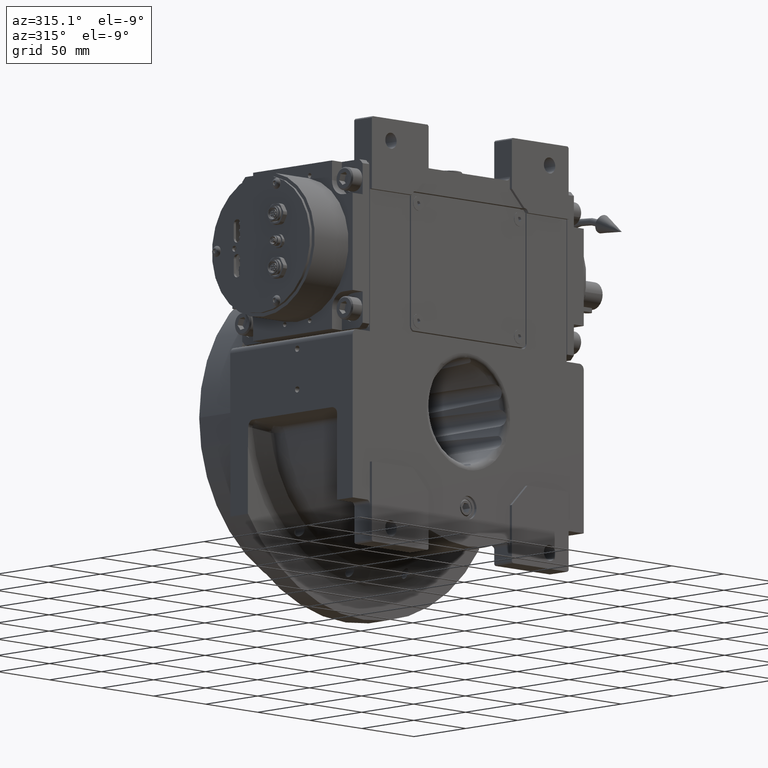
[diagram: clean part render]
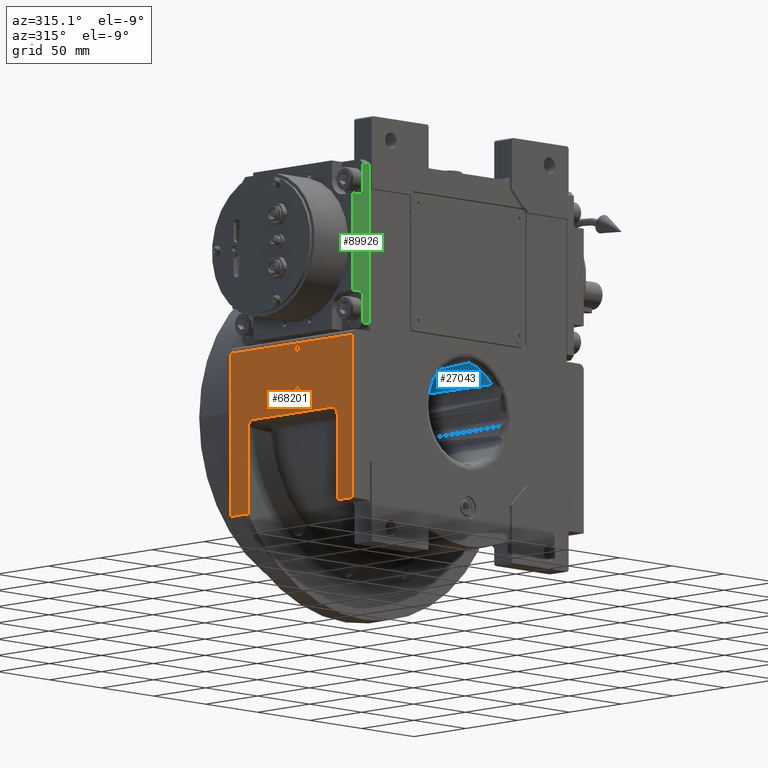
[diagram: same view with three faces highlighted in distinct colors, each labeled with its STEP entity id]
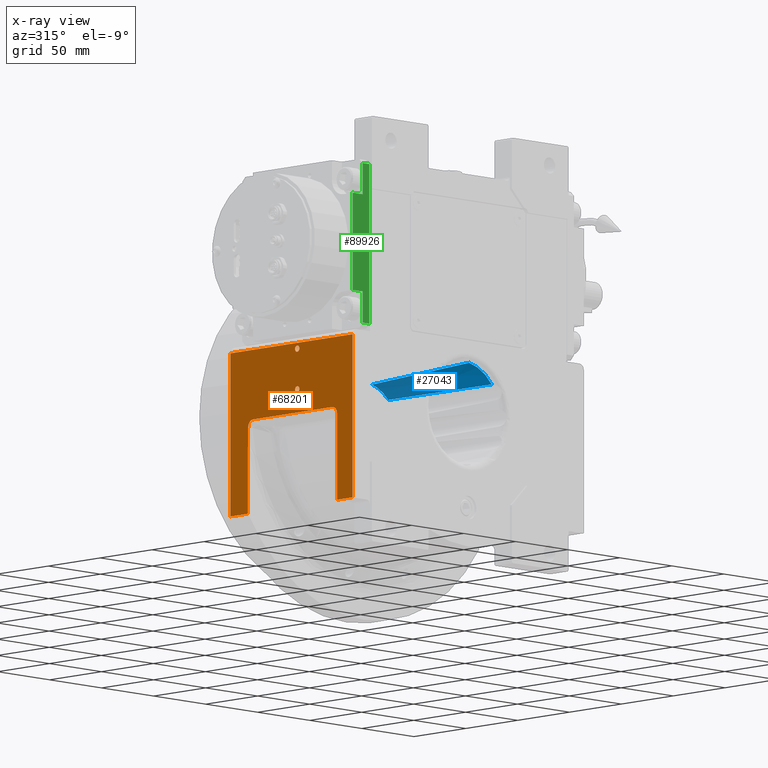
[diagram: x-ray of the same camera — body ghosted, the three highlighted faces saturated]
A machine part, auxiliary view with three faces highlighted in distinct colors.
The next image is the same camera in x-ray (body ghosted, the three faces saturated) — at least one of them is partly hidden behind the body in this view.
Their STEP definitions:

[orange] entity #68201 — the highlighted planar face has unit normal (-1, 0, 0).
#579 = LINE ( 'NONE', #94279, #13837 ) ;
#1533 = CARTESIAN_POINT ( 'NONE',  ( -110.9999999999999858, 47.49184152199143227, -23.26125549203704068 ) ) ;
#1794 =( BOUNDED_CURVE ( )  B_SPLINE_CURVE ( 3, ( #98461, #60829, #36641, #53115 ),
 .UNSPECIFIED., .F., .F. ) 
 B_SPLINE_CURVE_WITH_KNOTS ( ( 4, 4 ),
 ( 3.141592653590854045, 4.712388980385856740 ),
 .UNSPECIFIED. ) 
 CURVE ( )  GEOMETRIC_REPRESENTATION_ITEM ( )  RATIONAL_B_SPLINE_CURVE ( ( 1.000000000000000000, 0.8047378541243400685, 0.8047378541243400685, 1.000000000000000000 ) ) 
 REPRESENTATION_ITEM ( '' )  );
#1922 = EDGE_CURVE ( 'NONE', #71128, #11172, #1794, .T. ) ;
#1963 = LINE ( 'NONE', #18437, #12279 ) ;
#2055 = CARTESIAN_POINT ( 'NONE',  ( -111.0000000000000284, 47.38981798226070907, -17.67600262140464196 ) ) ;
#2257 = CARTESIAN_POINT ( 'NONE',  ( -111.0000000000000000, -33.50000000000000000, -7.000000000000000000 ) ) ;
#2578 = CARTESIAN_POINT ( 'NONE',  ( -110.9999998426041969, 47.24161804384319652, -11.75654023702319861 ) ) ;
#2926 = LINE ( 'NONE', #34296, #93612 ) ;
#3408 = ORIENTED_EDGE ( 'NONE', *, *, #40960, .T. ) ;
#4397 = CARTESIAN_POINT ( 'NONE',  ( -111.0000000000000000, -2.100000000000000089, 9.000000000000000000 ) ) ;
#5976 = CARTESIAN_POINT ( 'NONE',  ( -111.0000000000000000, 45.20819138357048672, -7.866231648914137509 ) ) ;
#6203 = EDGE_CURVE ( 'NONE', #84106, #11446, #71828, .T. ) ;
#6996 = CARTESIAN_POINT ( 'NONE',  ( -111.0000000000000284, 44.80537002266407853, -7.628406989121505610 ) ) ;
#7894 = LINE ( 'NONE', #80490, #32029 ) ;
#9353 = VECTOR ( 'NONE', #16023, 1000.000000000000000 ) ;
#9678 = FACE_BOUND ( 'NONE', #49708, .T. ) ;
#11172 = VERTEX_POINT ( 'NONE', #89399 ) ;
#11268 = ORIENTED_EDGE ( 'NONE', *, *, #22233, .F. ) ;
#11446 = VERTEX_POINT ( 'NONE', #47551 ) ;
#12279 = VECTOR ( 'NONE', #49866, 1000.000000000000000 ) ;
#13837 = VECTOR ( 'NONE', #78833, 1000.000000000000000 ) ;
#14203 = CARTESIAN_POINT ( 'NONE',  ( -111.0000000000000000, 47.50000000000000000, -71.43528539874399996 ) ) ;
#15243 = CARTESIAN_POINT ( 'NONE',  ( -111.0000000000000000, 44.38355727844160015, -7.415682013062533606 ) ) ;
#16023 = DIRECTION ( 'NONE',  ( 0.000000000000000000, -1.000000000000000000, 0.000000000000000000 ) ) ;
#16274 = VERTEX_POINT ( 'NONE', #4397 ) ;
#16336 = B_SPLINE_CURVE_WITH_KNOTS ( 'NONE', 3,
 ( #72077, #1533, #49425, #72589, #2055, #64344, #64872, #96271, #25715, #57147, #88566, #18014, #2578 ),
 .UNSPECIFIED., .F., .F.,
 ( 4, 1, 1, 2, 2, 1, 1, 1, 4 ),
 ( 0.000000000000000000, 0.4999999999999906741, 0.5624999999999891198, 0.5703124999999893419, 0.5781249999999896749, 0.5937499999999901190, 0.6249999999999905631, 0.7499999999999935607, 1.000000000000000000 ),
 .UNSPECIFIED. ) ;
#16798 = DIRECTION ( 'NONE',  ( 0.000000000000000000, 1.000000000000000000, 0.000000000000000000 ) ) ;
#17732 = LINE ( 'NONE', #40368, #32544 ) ;
#17917 = CARTESIAN_POINT ( 'NONE',  ( -111.0000000000000000, -53.50000000000000000, -71.43528539874399996 ) ) ;
#18014 = CARTESIAN_POINT ( 'NONE',  ( -111.0000000000000284, 47.26671036820440008, -12.69711666045169274 ) ) ;
#18022 = VERTEX_POINT ( 'NONE', #83561 ) ;
#18072 = CIRCLE ( 'NONE', #27894, 2.100000000000000089 ) ;
#18437 = CARTESIAN_POINT ( 'NONE',  ( -111.0000000000000000, 64.50000000000000000, -71.43528539874399996 ) ) ;
#18653 = DIRECTION ( 'NONE',  ( 0.000000000000000000, 1.000000000000000000, 0.000000000000000000 ) ) ;
#19084 = ORIENTED_EDGE ( 'NONE', *, *, #68962, .T. ) ;
#19744 = ORIENTED_EDGE ( 'NONE', *, *, #82980, .F. ) ;
#20669 = VERTEX_POINT ( 'NONE', #57895 ) ;
#20922 = CARTESIAN_POINT ( 'NONE',  ( -110.9999999999999858, 44.52823829090591090, -7.482778073993033630 ) ) ;
#22233 = EDGE_CURVE ( 'NONE', #62581, #99601, #41809, .T. ) ;
#22679 = DIRECTION ( 'NONE',  ( 0.000000000000000000, 1.000000000000000000, 0.000000000000000000 ) ) ;
#22720 = LINE ( 'NONE', #45397, #9353 ) ;
#22916 = CARTESIAN_POINT ( 'NONE',  ( -110.9999999999999574, 46.24926438878902246, -8.831662360591032268 ) ) ;
#23850 = VERTEX_POINT ( 'NONE', #88411 ) ;
#24197 = CARTESIAN_POINT ( 'NONE',  ( -111.0000000000000000, -3.552713678800499352E-15, 37.00000000000000000 ) ) ;
#25715 = CARTESIAN_POINT ( 'NONE',  ( -111.0000000000000000, 47.37801887890174868, -17.18315811918595060 ) ) ;
#27894 = AXIS2_PLACEMENT_3D ( 'NONE', #37556, #67468, #68474 ) ;
#28605 = VERTEX_POINT ( 'NONE', #99605 ) ;
#29247 = ORIENTED_EDGE ( 'NONE', *, *, #66476, .T. ) ;
#30548 = VECTOR ( 'NONE', #18653, 1000.000000000000000 ) ;
#31926 = CARTESIAN_POINT ( 'NONE',  ( -111.0000000000000000, 2.100000000000000089, 9.000000000000000000 ) ) ;
#32029 = VECTOR ( 'NONE', #79989, 1000.000000000000000 ) ;
#32544 = VECTOR ( 'NONE', #71794, 1000.000000000000000 ) ;
#32685 = ORIENTED_EDGE ( 'NONE', *, *, #72851, .F. ) ;
#32953 = EDGE_CURVE ( 'NONE', #36141, #16274, #79670, .T. ) ;
#34051 = EDGE_LOOP ( 'NONE', ( #52106, #100595 ) ) ;
#34296 = CARTESIAN_POINT ( 'NONE',  ( -111.0000000000000000, 47.50000000000000000, -71.43528539874399996 ) ) ;
#34580 = CARTESIAN_POINT ( 'NONE',  ( -111.0000000000000000, 47.50000000000000000, -71.43528539874399996 ) ) ;
#36141 = VERTEX_POINT ( 'NONE', #31926 ) ;
#36359 = AXIS2_PLACEMENT_3D ( 'NONE', #89638, #53000, #69448 ) ;
#36641 = CARTESIAN_POINT ( 'NONE',  ( -111.0000000000000284, -38.50000000000000000, -9.144127173638402439 ) ) ;
#37556 = CARTESIAN_POINT ( 'NONE',  ( -111.0000000000000000, -3.552713678800499352E-15, 9.000000000000000000 ) ) ;
#37797 = ORIENTED_EDGE ( 'NONE', *, *, #53550, .F. ) ;
#38642 = VERTEX_POINT ( 'NONE', #98132 ) ;
#38873 = AXIS2_PLACEMENT_3D ( 'NONE', #24197, #93221, #22679 ) ;
#40368 = CARTESIAN_POINT ( 'NONE',  ( -111.0000000000000000, -53.50000000000000000, -71.43528539874409944 ) ) ;
#40960 = EDGE_CURVE ( 'NONE', #62581, #83415, #2926, .T. ) ;
#41809 = LINE ( 'NONE', #34580, #30548 ) ;
#42534 = ORIENTED_EDGE ( 'NONE', *, *, #75279, .T. ) ;
#42703 = EDGE_CURVE ( 'NONE', #71128, #20669, #87354, .T. ) ;
#43263 = ORIENTED_EDGE ( 'NONE', *, *, #84242, .F. ) ;
#45397 = CARTESIAN_POINT ( 'NONE',  ( -111.0000000000000000, 64.50000000000000000, 41.00000000000000000 ) ) ;
#46673 = CARTESIAN_POINT ( 'NONE',  ( -111.0000000000000000, -33.50000000000000000, -7.000000000000000000 ) ) ;
#47551 = CARTESIAN_POINT ( 'NONE',  ( -111.0000000000000000, -2.100000000000000089, 37.00000000000000000 ) ) ;
#47906 = ORIENTED_EDGE ( 'NONE', *, *, #1922, .T. ) ;
#49425 = CARTESIAN_POINT ( 'NONE',  ( -110.9999999999999858, 47.45869610671962846, -20.70783326501533494 ) ) ;
#49708 = EDGE_LOOP ( 'NONE', ( #70232, #91003 ) ) ;
#49866 = DIRECTION ( 'NONE',  ( 0.000000000000000000, 0.000000000000000000, 1.000000000000000000 ) ) ;
#51831 = CARTESIAN_POINT ( 'NONE',  ( -110.9999998426041969, 47.24161804384319652, -11.75654023702319861 ) ) ;
#52106 = ORIENTED_EDGE ( 'NONE', *, *, #32953, .T. ) ;
#52334 = CARTESIAN_POINT ( 'NONE',  ( -110.9999999993382005, 42.40620941626179530, -7.000000000177450055 ) ) ;
#53000 = DIRECTION ( 'NONE',  ( 1.000000000000000000, 0.000000000000000000, 0.000000000000000000 ) ) ;
#53115 = CARTESIAN_POINT ( 'NONE',  ( -111.0000000000000000, -38.50000000000000000, -12.17638090205042189 ) ) ;
#53342 = CARTESIAN_POINT ( 'NONE',  ( -111.0000000000000142, 46.90681310458562336, -10.07660401504372771 ) ) ;
#53550 = EDGE_CURVE ( 'NONE', #99601, #23850, #1963, .T. ) ;
#54088 = B_SPLINE_CURVE_WITH_KNOTS ( 'NONE', 3,
 ( #51831, #61058, #61572, #92972, #85262, #53342, #54341, #85774, #22916, #77524, #5976, #6996, #20922, #15243, #62064, #84264, #52334 ),
 .UNSPECIFIED., .F., .F.,
 ( 4, 1, 1, 2, 2, 2, 1, 2, 2, 4 ),
 ( 0.000000000000000000, 0.1249999999999996114, 0.1874999999999987788, 0.2187499999999980571, 0.2499999999999973077, 0.4999999999999975575, 0.6249999999999972244, 0.6874999999999972244, 0.7499999999999972244, 1.000000000000000000 ),
 .UNSPECIFIED. ) ;
#54341 = CARTESIAN_POINT ( 'NONE',  ( -111.0000000000000142, 46.87834784565706059, -10.00509416193215095 ) ) ;
#57147 = CARTESIAN_POINT ( 'NONE',  ( -110.9999999999999716, 47.35640947859300098, -16.28572579493090444 ) ) ;
#57895 = CARTESIAN_POINT ( 'NONE',  ( -110.9999999993382005, 42.40620941626179530, -7.000000000177450055 ) ) ;
#59573 = DIRECTION ( 'NONE',  ( -1.000000000000000000, 0.000000000000000000, 0.000000000000000000 ) ) ;
#60829 = CARTESIAN_POINT ( 'NONE',  ( -111.0000000000000142, -36.42893218813447476, -6.999999999999989342 ) ) ;
#61058 = CARTESIAN_POINT ( 'NONE',  ( -111.0000000000000142, 47.23304483909880958, -11.43688986518032635 ) ) ;
#61572 = CARTESIAN_POINT ( 'NONE',  ( -111.0000000000000142, 47.17730589702550503, -10.96906219321990150 ) ) ;
#62064 = CARTESIAN_POINT ( 'NONE',  ( -111.0000000000000284, 43.65692249831813143, -7.119924177572298341 ) ) ;
#62581 = VERTEX_POINT ( 'NONE', #14203 ) ;
#64344 = CARTESIAN_POINT ( 'NONE',  ( -111.0000000000000142, 47.38804427955523835, -17.60168279826294579 ) ) ;
#64872 = CARTESIAN_POINT ( 'NONE',  ( -111.0000000000000142, 47.38697793714037942, -17.55712914402924696 ) ) ;
#66002 = CIRCLE ( 'NONE', #36359, 2.100000000000000089 ) ;
#66476 = EDGE_CURVE ( 'NONE', #83415, #38642, #16336, .T. ) ;
#66793 = DIRECTION ( 'NONE',  ( 0.000000000000000000, 0.000000000000000000, 1.000000000000000000 ) ) ;
#67468 = DIRECTION ( 'NONE',  ( 1.000000000000000000, 0.000000000000000000, 0.000000000000000000 ) ) ;
#68201 = ADVANCED_FACE ( 'NONE', ( #87969, #9678, #96168 ), #88470, .T. ) ;
#68474 = DIRECTION ( 'NONE',  ( 0.000000000000000000, -1.000000000000000000, -1.652117596168387559E-15 ) ) ;
#68962 = EDGE_CURVE ( 'NONE', #11172, #28605, #7894, .T. ) ;
#69448 = DIRECTION ( 'NONE',  ( 0.000000000000000000, -1.000000000000000000, 0.000000000000000000 ) ) ;
#70232 = ORIENTED_EDGE ( 'NONE', *, *, #6203, .T. ) ;
#71128 = VERTEX_POINT ( 'NONE', #2257 ) ;
#71794 = DIRECTION ( 'NONE',  ( 0.000000000000000000, 1.000000000000000000, 0.000000000000000000 ) ) ;
#71828 = CIRCLE ( 'NONE', #38873, 2.100000000000000089 ) ;
#72077 = CARTESIAN_POINT ( 'NONE',  ( -111.0000000000000000, 47.50000000000000000, -25.44626115736729588 ) ) ;
#72589 = CARTESIAN_POINT ( 'NONE',  ( -111.0000000000000142, 47.39775283363938030, -18.01025571059393826 ) ) ;
#72851 = EDGE_CURVE ( 'NONE', #99222, #28605, #17732, .T. ) ;
#72861 = EDGE_LOOP ( 'NONE', ( #37797, #11268, #3408, #29247, #42534, #87366, #47906, #19084, #32685, #19744, #43263 ) ) ;
#72899 = CARTESIAN_POINT ( 'NONE',  ( -111.0000000000000000, 47.50000000000000000, -25.44626115736729588 ) ) ;
#75279 = EDGE_CURVE ( 'NONE', #38642, #20669, #54088, .T. ) ;
#75617 = VECTOR ( 'NONE', #16798, 1000.000000000000000 ) ;
#77524 = CARTESIAN_POINT ( 'NONE',  ( -111.0000000000000142, 45.57238403428445395, -8.162200170006535416 ) ) ;
#78833 = DIRECTION ( 'NONE',  ( 0.000000000000000000, 0.000000000000000000, -1.000000000000000000 ) ) ;
#79670 = CIRCLE ( 'NONE', #81371, 2.100000000000000089 ) ;
#79739 = EDGE_CURVE ( 'NONE', #11446, #84106, #66002, .T. ) ;
#79989 = DIRECTION ( 'NONE',  ( 0.000000000000000000, 0.000000000000000000, -1.000000000000000000 ) ) ;
#80490 = CARTESIAN_POINT ( 'NONE',  ( -111.0000000000000000, -38.50000000000000000, -12.17638090205040058 ) ) ;
#81371 = AXIS2_PLACEMENT_3D ( 'NONE', #98675, #91448, #99666 ) ;
#82980 = EDGE_CURVE ( 'NONE', #18022, #99222, #579, .T. ) ;
#83415 = VERTEX_POINT ( 'NONE', #72899 ) ;
#83561 = CARTESIAN_POINT ( 'NONE',  ( -111.0000000000000000, -53.50000000000000000, 41.00000000000000000 ) ) ;
#84106 = VERTEX_POINT ( 'NONE', #91757 ) ;
#84242 = EDGE_CURVE ( 'NONE', #23850, #18022, #22720, .T. ) ;
#84264 = CARTESIAN_POINT ( 'NONE',  ( -111.0000000000000142, 43.04624886168785025, -7.001080695584134261 ) ) ;
#85262 = CARTESIAN_POINT ( 'NONE',  ( -111.0000000000000142, 46.96112643920030649, -10.22283934410663697 ) ) ;
#85774 = CARTESIAN_POINT ( 'NONE',  ( -110.9999999999999574, 46.59747468668511772, -9.345669636517394352 ) ) ;
#86239 = AXIS2_PLACEMENT_3D ( 'NONE', #17917, #59573, #66793 ) ;
#86504 = CARTESIAN_POINT ( 'NONE',  ( -111.0000000000000000, -53.50000000000000000, -71.43528539874409944 ) ) ;
#87354 = LINE ( 'NONE', #46673, #75617 ) ;
#87366 = ORIENTED_EDGE ( 'NONE', *, *, #42703, .F. ) ;
#87969 = FACE_BOUND ( 'NONE', #34051, .T. ) ;
#88411 = CARTESIAN_POINT ( 'NONE',  ( -111.0000000000000000, 64.50000000000000000, 41.00000000000000000 ) ) ;
#88470 = PLANE ( 'NONE',  #86239 ) ;
#88566 = CARTESIAN_POINT ( 'NONE',  ( -111.0000000000000284, 47.30739276393136095, -14.28307552350015541 ) ) ;
#88940 = CARTESIAN_POINT ( 'NONE',  ( -111.0000000000000000, 64.50000000000000000, -71.43528539874399996 ) ) ;
#89399 = CARTESIAN_POINT ( 'NONE',  ( -111.0000000000000000, -38.50000000000000000, -12.17638090205042189 ) ) ;
#89638 = CARTESIAN_POINT ( 'NONE',  ( -111.0000000000000000, -3.552713678800499352E-15, 37.00000000000000000 ) ) ;
#90849 = EDGE_CURVE ( 'NONE', #16274, #36141, #18072, .T. ) ;
#91003 = ORIENTED_EDGE ( 'NONE', *, *, #79739, .T. ) ;
#91448 = DIRECTION ( 'NONE',  ( 1.000000000000000000, 0.000000000000000000, 0.000000000000000000 ) ) ;
#91757 = CARTESIAN_POINT ( 'NONE',  ( -111.0000000000000000, 2.100000000000000089, 37.00000000000000000 ) ) ;
#92972 = CARTESIAN_POINT ( 'NONE',  ( -111.0000000000000000, 47.03723638803381846, -10.44364842193959575 ) ) ;
#93221 = DIRECTION ( 'NONE',  ( 1.000000000000000000, 0.000000000000000000, 0.000000000000000000 ) ) ;
#93612 = VECTOR ( 'NONE', #95087, 1000.000000000000000 ) ;
#94279 = CARTESIAN_POINT ( 'NONE',  ( -111.0000000000000000, -53.50000000000000000, 41.00000000000000000 ) ) ;
#95087 = DIRECTION ( 'NONE',  ( 0.000000000000000000, 0.000000000000000000, 1.000000000000000000 ) ) ;
#96168 = FACE_OUTER_BOUND ( 'NONE', #72861, .T. ) ;
#96271 = CARTESIAN_POINT ( 'NONE',  ( -111.0000000000000568, 47.38398366112607363, -17.43201616111707608 ) ) ;
#98132 = CARTESIAN_POINT ( 'NONE',  ( -110.9999998426041969, 47.24161804384319652, -11.75654023702319861 ) ) ;
#98461 = CARTESIAN_POINT ( 'NONE',  ( -111.0000000000000000, -33.50000000000000000, -7.000000000000000000 ) ) ;
#98675 = CARTESIAN_POINT ( 'NONE',  ( -111.0000000000000000, -3.552713678800499352E-15, 9.000000000000000000 ) ) ;
#99222 = VERTEX_POINT ( 'NONE', #86504 ) ;
#99601 = VERTEX_POINT ( 'NONE', #88940 ) ;
#99605 = CARTESIAN_POINT ( 'NONE',  ( -111.0000000000000000, -38.50000000000000000, -71.43528539874409944 ) ) ;
#99666 = DIRECTION ( 'NONE',  ( 0.000000000000000000, 1.000000000000000000, 1.652117596168387559E-15 ) ) ;
#100595 = ORIENTED_EDGE ( 'NONE', *, *, #90849, .T. ) ;

[blue] entity #27043 — the highlighted conical surface has half-angle 2.224 deg.
#894 = B_SPLINE_CURVE_WITH_KNOTS ( 'NONE', 3,
 ( #37536, #21113, #52513, #84945, #92654, #100368, #51524, #29303, #60736, #92140, #44259, #14407, #20116, #68945, #13918, #75694, #45286, #21606, #76707, #6162, #45777, #35529, #90652, #93657 ),
 .UNSPECIFIED., .F., .F.,
 ( 4, 2, 1, 2, 2, 1, 1, 1, 1, 1, 1, 1, 1, 1, 2, 2, 4 ),
 ( 0.000000000000000000, 0.2500000000000006661, 0.2812500000000006661, 0.2851562500000007216, 0.2890625000000007216, 0.2968750000000006661, 0.3125000000000006661, 0.3750000000000002776, 0.4374999999999998890, 0.4687499999999996669, 0.4843749999999996114, 0.4921874999999996114, 0.4960937499999995559, 0.4980468749999995559, 0.4990234374999995559, 0.4999999999999995559, 1.000000000000000000 ),
 .UNSPECIFIED. ) ;
#969 = CARTESIAN_POINT ( 'NONE',  ( 25.51128383037758596, -15.03979166437263437, 22.48583985264815510 ) ) ;
#1988 = CARTESIAN_POINT ( 'NONE',  ( 24.40343721540970634, 8.805876929435504152, 22.33347346601004091 ) ) ;
#2843 = DIRECTION ( 'NONE',  ( 0.000000000000000000, -1.000000000000000000, 1.836909530733564901E-16 ) ) ;
#4541 = CARTESIAN_POINT ( 'NONE',  ( 25.88057552598849398, -22.43255883661134575, 22.49981477759153847 ) ) ;
#6162 = CARTESIAN_POINT ( 'NONE',  ( 6.986198756228622742, -1.112472536497335796, 32.72819764094732875 ) ) ;
#6524 = EDGE_LOOP ( 'NONE', ( #100648, #101128, #55670, #33814 ) ) ;
#7436 = CARTESIAN_POINT ( 'NONE',  ( 7.465572626883210106, 46.61641710001750027, 30.71779199823640027 ) ) ;
#9709 = CARTESIAN_POINT ( 'NONE',  ( 24.76852740289404409, 0.6730493426671201318, 22.40147263997725702 ) ) ;
#10820 = DIRECTION ( 'NONE',  ( 0.000000000000000000, 1.000000000000000000, 0.000000000000000000 ) ) ;
#11243 = CARTESIAN_POINT ( 'NONE',  ( 25.95781279302216404, -23.94214981186699376, 22.50025392733025953 ) ) ;
#13468 = CONICAL_SURFACE ( 'NONE', #70993, 1.000000000000000000, 0.03881544608146950126 ) ;
#13918 = CARTESIAN_POINT ( 'NONE',  ( 6.956713694823005056, -2.830628598857671818, 32.80269391452520722 ) ) ;
#14407 = CARTESIAN_POINT ( 'NONE',  ( 6.760513059066273200, -13.11549990474103389, 33.25152393777735682 ) ) ;
#16415 = CARTESIAN_POINT ( 'NONE',  ( 25.03417263803944337, -5.111746378134564672, 22.44241922420927082 ) ) ;
#16935 = CARTESIAN_POINT ( 'NONE',  ( 25.76586295523984305, -20.15906628333558359, 22.49703246913785648 ) ) ;
#19981 = CARTESIAN_POINT ( 'NONE',  ( 26.42420339741958557, -32.98277521134984624, 22.49775664276875276 ) ) ;
#20116 = CARTESIAN_POINT ( 'NONE',  ( 6.860290443138764793, -8.134360098611463030, 33.03346330531967112 ) ) ;
#20865 = CARTESIAN_POINT ( 'NONE',  ( 4.973799150320699408E-14, 46.61641710001710237, 8.881784197001248537E-14 ) ) ;
#21113 = CARTESIAN_POINT ( 'NONE',  ( 6.022077876776402050, -40.84851847077006681, 34.48864115374617967 ) ) ;
#21606 = CARTESIAN_POINT ( 'NONE',  ( 6.983499318605022488, -1.271834120789557598, 32.73510189988977004 ) ) ;
#25174 = AXIS2_PLACEMENT_3D ( 'NONE', #64881, #10820, #80852 ) ;
#25654 = CARTESIAN_POINT ( 'NONE',  ( 24.83612322846023091, -0.8028076794671242800, 22.41214229728206675 ) ) ;
#26155 = CARTESIAN_POINT ( 'NONE',  ( 24.84177032211308145, -0.9257628676239468835, 22.41301157074224193 ) ) ;
#26762 = CARTESIAN_POINT ( 'NONE',  ( 27.31593238095755183, -48.69402850002909844, 22.38019785351220392 ) ) ;
#27043 = ADVANCED_FACE ( 'NONE', ( #97586 ), #13468, .F. ) ;
#28473 = CIRCLE ( 'NONE', #25174, 35.31336033009879571 ) ;
#29070 = DIRECTION ( 'NONE',  ( 0.2361627373232034199, 1.185310840213651156E-14, 0.9717135182243846758 ) ) ;
#29303 = CARTESIAN_POINT ( 'NONE',  ( 6.573042581034295395, -21.28232574482870021, 33.61216087136617858 ) ) ;
#29571 = DIRECTION ( 'NONE',  ( -6.238952002062300699E-15, 1.000000000000000000, -1.074329498307580039E-14 ) ) ;
#30003 = VERTEX_POINT ( 'NONE', #7436 ) ;
#32345 = CARTESIAN_POINT ( 'NONE',  ( 25.61991781937399892, -17.24455033886479072, 22.49199927328526627 ) ) ;
#33814 = ORIENTED_EDGE ( 'NONE', *, *, #49139, .T. ) ;
#35529 = CARTESIAN_POINT ( 'NONE',  ( 7.253242697210138701, 14.69085711055933174, 32.04362592338982552 ) ) ;
#37536 = CARTESIAN_POINT ( 'NONE',  ( 5.723853692384750502, -48.69402850002909844, 34.84639029672330679 ) ) ;
#38238 = AXIS2_PLACEMENT_3D ( 'NONE', #20865, #29571, #29070 ) ;
#38716 = EDGE_CURVE ( 'NONE', #30003, #84173, #71129, .T. ) ;
#40079 = CARTESIAN_POINT ( 'NONE',  ( 23.97559824061679734, 18.69828848316890557, 22.23098874935703506 ) ) ;
#40567 = CARTESIAN_POINT ( 'NONE',  ( 24.14431659784692741, 14.73565033754468701, 22.27525475562021384 ) ) ;
#41083 = CARTESIAN_POINT ( 'NONE',  ( 24.80791845434982790, -0.1879601732337389530, 22.40775267802282755 ) ) ;
#42735 = VERTEX_POINT ( 'NONE', #70345 ) ;
#44259 = CARTESIAN_POINT ( 'NONE',  ( 6.662437458124577105, -17.52649173517004755, 33.44591884574079188 ) ) ;
#45286 = CARTESIAN_POINT ( 'NONE',  ( 6.979709668964797054, -1.494847326153466271, 32.74476566856040449 ) ) ;
#45777 = CARTESIAN_POINT ( 'NONE',  ( 6.986757225006181571, -1.079452833704635184, 32.72676720994711985 ) ) ;
#47815 = CARTESIAN_POINT ( 'NONE',  ( 25.22349478906490816, -9.117395917710094722, 22.46406618705172775 ) ) ;
#48333 = CARTESIAN_POINT ( 'NONE',  ( 25.77231298795854642, -20.28739144586872101, 22.49722197610245900 ) ) ;
#48832 = CARTESIAN_POINT ( 'NONE',  ( 24.53450783075404118, 5.844536177962814882, 22.36053744872413773 ) ) ;
#49139 = EDGE_CURVE ( 'NONE', #42735, #30003, #894, .T. ) ;
#49891 = CARTESIAN_POINT ( 'NONE',  ( 24.69007782288652209, 2.395844051595635626, 22.38844597938574310 ) ) ;
#51397 = CARTESIAN_POINT ( 'NONE',  ( 27.31593238095755183, -48.69402850002909844, 22.38019785351220392 ) ) ;
#51524 = CARTESIAN_POINT ( 'NONE',  ( 6.570175816266306867, -21.40025213418825345, 33.61738769822922279 ) ) ;
#52513 = CARTESIAN_POINT ( 'NONE',  ( 6.273740630820433317, -32.92053606919856890, 34.13003539115194940 ) ) ;
#53635 = CARTESIAN_POINT ( 'NONE',  ( 22.86960190519749858, 46.61641710001750027, 21.82427154779680123 ) ) ;
#53765 = CARTESIAN_POINT ( 'NONE',  ( 26.85994327169417417, -40.89856346297862899, 22.45906777033901847 ) ) ;
#53990 = B_SPLINE_CURVE_WITH_KNOTS ( 'NONE', 3,
 ( #56581, #56056, #71504, #40079, #40567, #1988, #48832, #49891, #9709, #41083, #64794, #25654, #26155, #55537, #16415, #47815, #969, #32345, #63752, #95160, #16935, #48333, #79767, #4541, #11243, #19981, #53765, #51397 ),
 .UNSPECIFIED., .F., .F.,
 ( 4, 2, 2, 1, 1, 1, 1, 1, 2, 2, 2, 1, 1, 2, 2, 1, 2, 4 ),
 ( 0.000000000000000000, 0.2499999999999996669, 0.3749999999999995004, 0.4374999999999994449, 0.4687499999999993894, 0.4843749999999993339, 0.4921874999999993339, 0.4960937499999993339, 0.4980468749999993339, 0.4999999999999993339, 0.6249999999999992228, 0.6874999999999992228, 0.6953124999999992228, 0.6992187499999992228, 0.7031249999999992228, 0.7187499999999991118, 0.7499999999999992228, 1.000000000000000000 ),
 .UNSPECIFIED. ) ;
#54944 = EDGE_CURVE ( 'NONE', #84173, #64993, #53990, .T. ) ;
#55537 = CARTESIAN_POINT ( 'NONE',  ( 24.84450238245271336, -0.9852262043414158343, 22.41343067772652731 ) ) ;
#55670 = ORIENTED_EDGE ( 'NONE', *, *, #96070, .F. ) ;
#56056 = CARTESIAN_POINT ( 'NONE',  ( 23.16783615626534854, 38.59658207325363577, 21.96288101825722805 ) ) ;
#56581 = CARTESIAN_POINT ( 'NONE',  ( 22.86960190519749858, 46.61641710001750027, 21.82427154779680123 ) ) ;
#60736 = CARTESIAN_POINT ( 'NONE',  ( 6.581826262667238581, -20.91999557110133878, 33.59610421277873371 ) ) ;
#63752 = CARTESIAN_POINT ( 'NONE',  ( 25.73542481576599528, -19.55262967640779692, 22.49607938581957356 ) ) ;
#64794 = CARTESIAN_POINT ( 'NONE',  ( 24.82765555852873263, -0.6183679715431901203, 22.41083419929787723 ) ) ;
#64881 = CARTESIAN_POINT ( 'NONE',  ( 3.552713678800499352E-15, -48.69402850002909844, 3.197442310920450205E-14 ) ) ;
#64993 = VERTEX_POINT ( 'NONE', #26762 ) ;
#66674 = DIRECTION ( 'NONE',  ( 0.000000000000000000, 0.000000000000000000, 1.000000000000000000 ) ) ;
#68945 = CARTESIAN_POINT ( 'NONE',  ( 6.925363045054214517, -4.605542403853359446, 32.87978573458230613 ) ) ;
#70345 = CARTESIAN_POINT ( 'NONE',  ( 5.723853692384750502, -48.69402850002909844, 34.84639029672330679 ) ) ;
#70993 = AXIS2_PLACEMENT_3D ( 'NONE', #88851, #2843, #66674 ) ;
#71129 = CIRCLE ( 'NONE', #38238, 31.61198380194101176 ) ;
#71504 = CARTESIAN_POINT ( 'NONE',  ( 23.48138045982657118, 30.61457054069616390, 22.08259406658937252 ) ) ;
#75694 = CARTESIAN_POINT ( 'NONE',  ( 6.972093518077168817, -1.940545456955806936, 32.76408545159119257 ) ) ;
#76707 = CARTESIAN_POINT ( 'NONE',  ( 6.985119507321916110, -1.176221859927524704, 32.73095945507134985 ) ) ;
#79767 = CARTESIAN_POINT ( 'NONE',  ( 25.80408192880812024, -20.91873774834324706, 22.49810808265511852 ) ) ;
#80852 = DIRECTION ( 'NONE',  ( 0.1620874830058615379, 0.000000000000000000, 0.9867763920224401630 ) ) ;
#84173 = VERTEX_POINT ( 'NONE', #53635 ) ;
#84945 = CARTESIAN_POINT ( 'NONE',  ( 6.507895992867988255, -23.90877444857894574, 33.72873704697388320 ) ) ;
#88851 = CARTESIAN_POINT ( 'NONE',  ( 0.000000000000000000, 834.8749999998768772, -1.415119829553997709E-13 ) ) ;
#90652 = CARTESIAN_POINT ( 'NONE',  ( 7.407450296558792502, 30.57923330682627139, 31.37285089244275227 ) ) ;
#92140 = CARTESIAN_POINT ( 'NONE',  ( 6.599306107180371583, -20.19458486953130105, 33.56397017648107095 ) ) ;
#92654 = CARTESIAN_POINT ( 'NONE',  ( 6.536400482018568603, -22.78085453633198298, 33.67860664871169263 ) ) ;
#93657 = CARTESIAN_POINT ( 'NONE',  ( 7.465572626883210106, 46.61641710001750027, 30.71779199823640027 ) ) ;
#95160 = CARTESIAN_POINT ( 'NONE',  ( 25.75368476741833490, -19.91655888944159969, 22.49665975858848199 ) ) ;
#96070 = EDGE_CURVE ( 'NONE', #42735, #64993, #28473, .T. ) ;
#97586 = FACE_OUTER_BOUND ( 'NONE', #6524, .T. ) ;
#100368 = CARTESIAN_POINT ( 'NONE',  ( 6.564052057615202607, -21.65130370070690446, 33.62851756937610048 ) ) ;
#100648 = ORIENTED_EDGE ( 'NONE', *, *, #38716, .T. ) ;
#101128 = ORIENTED_EDGE ( 'NONE', *, *, #54944, .T. ) ;

[green] entity #89926 — the highlighted planar face has unit normal (0, -1, -0).
#1020 = LINE ( 'NONE', #69515, #48117 ) ;
#3052 = VECTOR ( 'NONE', #42559, 1000.000000000000000 ) ;
#4434 = VERTEX_POINT ( 'NONE', #53632 ) ;
#4476 = ORIENTED_EDGE ( 'NONE', *, *, #99200, .T. ) ;
#4567 = VECTOR ( 'NONE', #34534, 1000.000000000000000 ) ;
#6493 = ORIENTED_EDGE ( 'NONE', *, *, #11374, .T. ) ;
#7917 = DIRECTION ( 'NONE',  ( 2.831068712794147285E-14, 3.774758283725539337E-15, 1.000000000000000000 ) ) ;
#8955 = CARTESIAN_POINT ( 'NONE',  ( -53.49999999999905498, -6.499999999999992006, 33.49999999999858602 ) ) ;
#10096 = EDGE_CURVE ( 'NONE', #71068, #4434, #63988, .T. ) ;
#10229 = VECTOR ( 'NONE', #10352, 1000.000000000000000 ) ;
#10352 = DIRECTION ( 'NONE',  ( 3.861222998158627866E-29, 1.000000000000000000, 3.774758283725536182E-15 ) ) ;
#11374 = EDGE_CURVE ( 'NONE', #89276, #4434, #72261, .T. ) ;
#15649 = CARTESIAN_POINT ( 'NONE',  ( -53.49999999999858602, 4.579669976578770729E-13, 54.99999999999835154 ) ) ;
#16639 = DIRECTION ( 'NONE',  ( -3.861222998158627866E-29, -1.000000000000000000, -3.774758283725536182E-15 ) ) ;
#18919 = LINE ( 'NONE', #65740, #3052 ) ;
#21160 = AXIS2_PLACEMENT_3D ( 'NONE', #54284, #91528, #83324 ) ;
#25828 = CARTESIAN_POINT ( 'NONE',  ( -53.50000000000094502, -16.00000000000000000, -33.50000000000186162 ) ) ;
#29694 = CARTESIAN_POINT ( 'NONE',  ( -53.49999999999858602, 4.718447854656915297E-13, 54.99999999999835154 ) ) ;
#30401 = ORIENTED_EDGE ( 'NONE', *, *, #71655, .T. ) ;
#32429 = VECTOR ( 'NONE', #16639, 1000.000000000000000 ) ;
#33468 = ORIENTED_EDGE ( 'NONE', *, *, #94267, .T. ) ;
#34534 = DIRECTION ( 'NONE',  ( 2.831068712794147285E-14, 3.774758283725539337E-15, 1.000000000000000000 ) ) ;
#35741 = ORIENTED_EDGE ( 'NONE', *, *, #75160, .T. ) ;
#37884 = VECTOR ( 'NONE', #57206, 1000.000000000000000 ) ;
#42350 = CARTESIAN_POINT ( 'NONE',  ( -53.49999999999905498, -16.00000000000000000, 33.49999999999858602 ) ) ;
#42559 = DIRECTION ( 'NONE',  ( 3.861222998158627866E-29, 1.000000000000000000, 3.774758283725536182E-15 ) ) ;
#44159 = PLANE ( 'NONE',  #21160 ) ;
#44228 = VERTEX_POINT ( 'NONE', #55311 ) ;
#46310 = VERTEX_POINT ( 'NONE', #98713 ) ;
#46329 = DIRECTION ( 'NONE',  ( -3.861222998158627866E-29, -1.000000000000000000, -3.774758283725536182E-15 ) ) ;
#46493 = VECTOR ( 'NONE', #49541, 1000.000000000000000 ) ;
#47119 = VERTEX_POINT ( 'NONE', #42350 ) ;
#48117 = VECTOR ( 'NONE', #46329, 1000.000000000000000 ) ;
#48888 = EDGE_CURVE ( 'NONE', #70848, #71068, #54650, .T. ) ;
#48952 = ORIENTED_EDGE ( 'NONE', *, *, #48888, .F. ) ;
#49478 = CARTESIAN_POINT ( 'NONE',  ( -53.50000000000094502, -16.00000000000000000, -33.50000000000186162 ) ) ;
#49541 = DIRECTION ( 'NONE',  ( 2.831068712794147285E-14, 3.774758283725539337E-15, 1.000000000000000000 ) ) ;
#53632 = CARTESIAN_POINT ( 'NONE',  ( -53.49999999999858602, -6.499999999999977796, 54.99999999999858602 ) ) ;
#54284 = CARTESIAN_POINT ( 'NONE',  ( -53.50000000000164846, 0.000000000000000000, -58.00000000000188294 ) ) ;
#54650 = LINE ( 'NONE', #65933, #37884 ) ;
#55311 = CARTESIAN_POINT ( 'NONE',  ( -53.50000000000094502, -16.00000000000000000, -33.50000000000186162 ) ) ;
#57206 = DIRECTION ( 'NONE',  ( 2.831068712794147285E-14, 3.774758283725539337E-15, 1.000000000000000000 ) ) ;
#59124 = FACE_OUTER_BOUND ( 'NONE', #100953, .T. ) ;
#60630 = CARTESIAN_POINT ( 'NONE',  ( -53.50000000000141398, 0.000000000000000000, -55.00000000000188294 ) ) ;
#63935 = LINE ( 'NONE', #25828, #46493 ) ;
#63988 = LINE ( 'NONE', #15649, #32429 ) ;
#65740 = CARTESIAN_POINT ( 'NONE',  ( -53.49999999999905498, -16.00000000000000000, 33.49999999999858602 ) ) ;
#65933 = CARTESIAN_POINT ( 'NONE',  ( -53.50000000000141398, 0.000000000000000000, -55.00000000000188294 ) ) ;
#69515 = CARTESIAN_POINT ( 'NONE',  ( -53.50000000000141398, 0.000000000000000000, -55.00000000000188294 ) ) ;
#69705 = ORIENTED_EDGE ( 'NONE', *, *, #10096, .F. ) ;
#70848 = VERTEX_POINT ( 'NONE', #60630 ) ;
#71068 = VERTEX_POINT ( 'NONE', #29694 ) ;
#71655 = EDGE_CURVE ( 'NONE', #101308, #46310, #80926, .T. ) ;
#72261 = LINE ( 'NONE', #8955, #95207 ) ;
#73695 = CARTESIAN_POINT ( 'NONE',  ( -53.50000000000141398, -6.499999999999992006, -55.00000000000188294 ) ) ;
#75160 = EDGE_CURVE ( 'NONE', #47119, #89276, #18919, .T. ) ;
#80380 = LINE ( 'NONE', #49478, #10229 ) ;
#80664 = EDGE_CURVE ( 'NONE', #44228, #46310, #80380, .T. ) ;
#80926 = LINE ( 'NONE', #73695, #4567 ) ;
#83324 = DIRECTION ( 'NONE',  ( 2.831068712794147285E-14, 3.774758283725539337E-15, 1.000000000000000000 ) ) ;
#83898 = CARTESIAN_POINT ( 'NONE',  ( -53.50000000000141398, -6.499999999999992006, -55.00000000000188294 ) ) ;
#89276 = VERTEX_POINT ( 'NONE', #96862 ) ;
#89926 = ADVANCED_FACE ( 'NONE', ( #59124 ), #44159, .T. ) ;
#91528 = DIRECTION ( 'NONE',  ( -1.000000000000000000, 1.750997146562628530E-28, 2.831068712794147285E-14 ) ) ;
#94267 = EDGE_CURVE ( 'NONE', #44228, #47119, #63935, .T. ) ;
#95207 = VECTOR ( 'NONE', #7917, 1000.000000000000000 ) ;
#96862 = CARTESIAN_POINT ( 'NONE',  ( -53.49999999999905498, -6.499999999999992006, 33.49999999999858602 ) ) ;
#98713 = CARTESIAN_POINT ( 'NONE',  ( -53.50000000000094502, -6.499999999999992006, -33.50000000000186162 ) ) ;
#99200 = EDGE_CURVE ( 'NONE', #70848, #101308, #1020, .T. ) ;
#100953 = EDGE_LOOP ( 'NONE', ( #48952, #4476, #30401, #101492, #33468, #35741, #6493, #69705 ) ) ;
#101308 = VERTEX_POINT ( 'NONE', #83898 ) ;
#101492 = ORIENTED_EDGE ( 'NONE', *, *, #80664, .F. ) ;